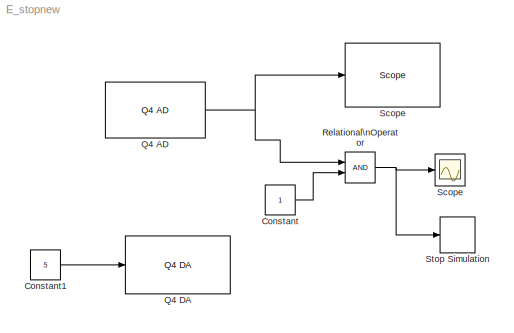
MODEL E_stopnew
KIND model
BLOCK [Constant] Constant
  SID = 113
BLOCK [Constant] Constant1
  SID = 115
  Value = 5
BLOCK [Reference] Q4 AD  REF=xpcquanserlib/A//D/Q4 AD
  Ports = [0, 1]
  SID = 105
  SourceBlock = xpcquanserlib/A//D/Q4 AD
  SourceProductBaseCode = XP
  SourceProductName = Simulink Real-Time
  SourceType = quanser_q4_ad
  channel = [4]
  sampleTime = 0.01
  slot = -1
BLOCK [Reference] Q4 DA   REF=xpcquanserlib/D//A/Q4 DA 
  Ports = [1]
  SID = 110
  SourceBlock = xpcquanserlib/D//A/Q4 DA
  SourceProductBaseCode = XP
  SourceProductName = Simulink Real-Time
  SourceType = quanser_q4_da
  channel = [4]
  initValue = [0]
  range = [-5]
  reset = [1]
  sampleTime = .001
  simul = off
  slot = -1
BLOCK [RelationalOperator] Relational\nOperator
  InputSameDT = off
  OutDataTypeStr = boolean
  Ports = [2, 1]
  SID = 112
BLOCK [Scope] Scope
  NumInputPorts = 1
  Ports = [1]
  SID = 121
  ScopeSpecificationString = Simulink.scopes.TimeScopeBlockCfg('CurrentConfiguration', extmgr.ConfigurationSet(extmgr.Configuration('Core','General UI',true),extmgr.Configuration('Core','Source UI',true),extmgr.Configuration('Sources','WiredSimulink',true),extmgr.Configuration('Visuals','Time Domain',true),extmgr.Configuration('Tools','Plot Navigation',true),extmgr.Configuration('Tools','Measurements',true)),'Version','2017a'...<+1ch>
BLOCK [Reference] Scope   REF=slrtlib/Displays and\nLogging/Scope 
  Ports = [1]
  SID = 117
  SourceBlock = slrtlib/Displays and\nLogging/Scope
  SourceProductBaseCode = XP
  SourceProductName = Simulink Real-Time
  SourceType = xpcscopeblock
  autorestart = off
  autostart = on
  dynamicfilemode = off
  filename = data.dat
  formatstr = '%15.6f'
  grid = on
  interleave = 10
  maxwritefilesize = 512*1024^2
  mode = Lazy
  noprepostsamples = 0
  nosamples = 500
  scopeno = 1
  scopetype = Target
  triggerlevel = 0.0
  triggermode = FreeRun
  triggersample = 0
  triggerscope = 1
  triggersignal = 1
  triggerslope = Either
  trigsignalfromport = off
  viewmode = Graphical rolling
  writesize = 512
  ylimits = [0,0]
BLOCK [Stop] Stop Simulation
  SID = 122
LINE Constant1:1 -> Q4 DA :1
LINE Constant:1 -> Relational\nOperator:2
NET Q4 AD:1 -> Relational\nOperator:1, Scope :1
NET Relational\nOperator:1 -> Scope:1, Stop Simulation:1
note: NET lines group one-source signal fan-out (src -> all destinations, sorted); 1:1 wires keep LINE
